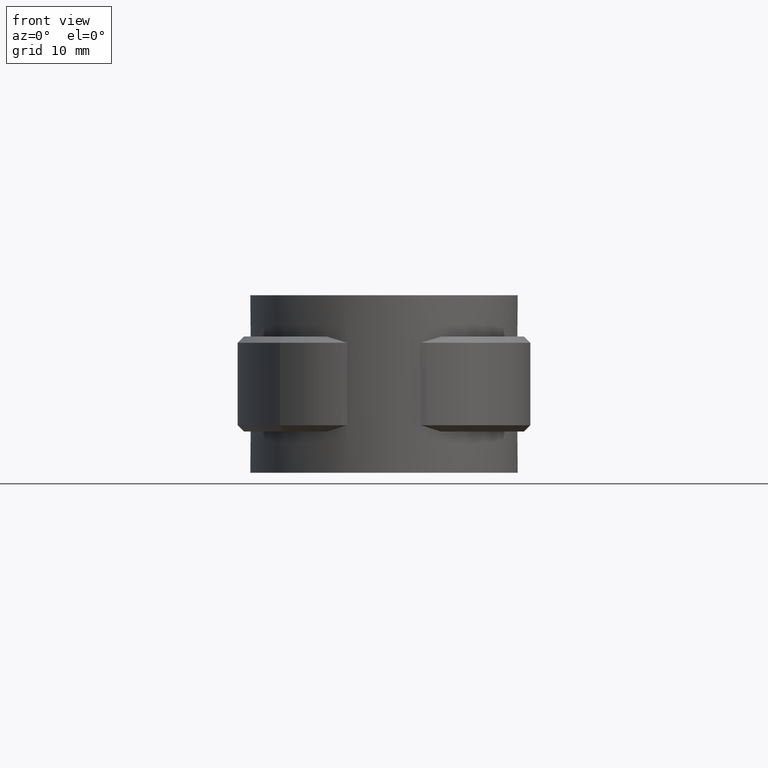
[diagram: clean part render]
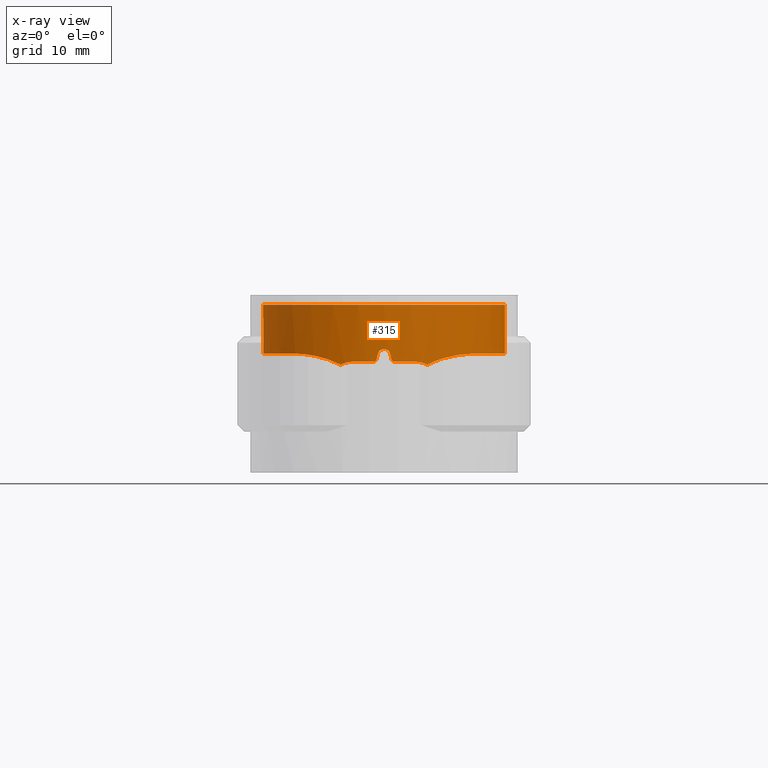
[diagram: x-ray — body ghosted, one internal face saturated and labeled with its STEP entity id]
A machine part, front view, then the same camera in x-ray: the body is ghosted and one INTERNAL B-rep face — a face not visible from any outside direction — is saturated and labeled: STEP entity #315.
In plain terms, the highlighted cylindrical surface (partial cylindrical patch) has radius 19.1 mm, axis along (0, 0, 1).
Its self-contained STEP definition (entity closure, byte-faithful):
#315 = ADVANCED_FACE( '', ( #528 ), #529, .T. );
#528 = FACE_OUTER_BOUND( '', #982, .T. );
#529 = CYLINDRICAL_SURFACE( '', #983, 19.1000000000000 );
#982 = EDGE_LOOP( '', ( #1820, #1821, #1822, #1823, #1824, #1825, #1826, #1827, #1828, #1829, #1830, #1831, #1832, #1833, #1834, #1835 ) );
#983 = AXIS2_PLACEMENT_3D( '', #1836, #1837, #1838 );
#1820 = ORIENTED_EDGE( '', *, *, #4294, .F. );
#1821 = ORIENTED_EDGE( '', *, *, #4295, .F. );
#1822 = ORIENTED_EDGE( '', *, *, #4296, .F. );
#1823 = ORIENTED_EDGE( '', *, *, #4297, .F. );
#1824 = ORIENTED_EDGE( '', *, *, #4298, .F. );
#1825 = ORIENTED_EDGE( '', *, *, #4299, .T. );
#1826 = ORIENTED_EDGE( '', *, *, #4300, .F. );
#1827 = ORIENTED_EDGE( '', *, *, #4301, .F. );
#1828 = ORIENTED_EDGE( '', *, *, #4302, .F. );
#1829 = ORIENTED_EDGE( '', *, *, #4303, .F. );
#1830 = ORIENTED_EDGE( '', *, *, #4304, .F. );
#1831 = ORIENTED_EDGE( '', *, *, #4305, .F. );
#1832 = ORIENTED_EDGE( '', *, *, #4306, .F. );
#1833 = ORIENTED_EDGE( '', *, *, #4307, .F. );
#1834 = ORIENTED_EDGE( '', *, *, #4308, .F. );
#1835 = ORIENTED_EDGE( '', *, *, #4309, .F. );
#1836 = CARTESIAN_POINT( '', ( 0.000000000000000, 0.000000000000000, 0.000000000000000 ) );
#1837 = DIRECTION( '', ( 0.000000000000000, 0.000000000000000, 1.00000000000000 ) );
#1838 = DIRECTION( '', ( 1.00000000000000, -6.12303176911189E-017, 0.000000000000000 ) );
#4294 = EDGE_CURVE( '', #4879, #4880, #4881, .T. );
#4295 = EDGE_CURVE( '', #4882, #4879, #4883, .T. );
#4296 = EDGE_CURVE( '', #4884, #4882, #4885, .T. );
#4297 = EDGE_CURVE( '', #4886, #4884, #4887, .T. );
#4298 = EDGE_CURVE( '', #4888, #4886, #4889, .F. );
#4299 = EDGE_CURVE( '', #4888, #4890, #4891, .T. );
#4300 = EDGE_CURVE( '', #4892, #4890, #4893, .T. );
#4301 = EDGE_CURVE( '', #4894, #4892, #4895, .T. );
#4302 = EDGE_CURVE( '', #4896, #4894, #4897, .T. );
#4303 = EDGE_CURVE( '', #4898, #4896, #4899, .T. );
#4304 = EDGE_CURVE( '', #4900, #4898, #4901, .T. );
#4305 = EDGE_CURVE( '', #4902, #4900, #4903, .T. );
#4306 = EDGE_CURVE( '', #4904, #4902, #4905, .T. );
#4307 = EDGE_CURVE( '', #4906, #4904, #4907, .T. );
#4308 = EDGE_CURVE( '', #4908, #4906, #4909, .T. );
#4309 = EDGE_CURVE( '', #4880, #4908, #4910, .T. );
#4879 = VERTEX_POINT( '', #5855 );
#4880 = VERTEX_POINT( '', #5856 );
#4881 = B_SPLINE_CURVE_WITH_KNOTS( '', 3, ( #5857, #5858, #5859, #5860, #5861, #5862, #5863, #5864 ), .UNSPECIFIED., .F., .F., ( 4, 2, 2, 4 ), ( 0.00930485489728145, 0.00980159790012563, 0.0102983409029698, 0.0112918269086582 ), .UNSPECIFIED. );
#4882 = VERTEX_POINT( '', #5865 );
#4883 = B_SPLINE_CURVE_WITH_KNOTS( '', 3, ( #5866, #5867, #5868, #5869, #5870, #5871, #5872, #5873, #5874, #5875, #5876, #5877 ), .UNSPECIFIED., .F., .F., ( 4, 2, 2, 2, 2, 4 ), ( 0.000000000000000, 0.00223758353469312, 0.00335637530203968, 0.00447516706938624, 0.00671275060407937, 0.00895033413877249 ), .UNSPECIFIED. );
#4884 = VERTEX_POINT( '', #5878 );
#4885 = B_SPLINE_CURVE_WITH_KNOTS( '', 3, ( #5879, #5880, #5881, #5882, #5883, #5884, #5885, #5886, #5887, #5888, #5889, #5890, #5891, #5892, #5893, #5894, #5895, #5896, #5897, #5898, #5899, #5900, #5901, #5902, #5903, #5904, #5905, #5906, #5907, #5908, #5909, #5910, #5911, #5912, #5913, #5914 ), .UNSPECIFIED., .F., .F., ( 4, 2, 2, 2, 2, 2, 2, 2, 2, 2, 2, 2, 2, 2, 2, 2, 2, 4 ), ( 0.000000000000000, 0.00475108088717999, 0.00593885110897499, 0.00712662133076999, 0.00950216177435998, 0.0118777022179500, 0.0130654724397450, 0.0142532426615400, 0.0190043235487200, 0.0201920937705150, 0.0213798639923100, 0.0237554044358999, 0.0249431746576949, 0.0261309448794899, 0.0285064853230799, 0.0308820257666699, 0.0332575662102599, 0.0380086470974399 ), .UNSPECIFIED. );
#4886 = VERTEX_POINT( '', #5915 );
#4887 = LINE( '', #5916, #5917 );
#4888 = VERTEX_POINT( '', #5918 );
#4889 = CIRCLE( '', #5919, 19.1000000000000 );
#4890 = VERTEX_POINT( '', #5920 );
#4891 = LINE( '', #5921, #5922 );
#4892 = VERTEX_POINT( '', #5923 );
#4893 = B_SPLINE_CURVE_WITH_KNOTS( '', 3, ( #5924, #5925, #5926, #5927, #5928, #5929, #5930, #5931, #5932, #5933, #5934, #5935, #5936, #5937, #5938, #5939, #5940, #5941, #5942, #5943, #5944, #5945, #5946, #5947, #5948, #5949, #5950, #5951, #5952, #5953, #5954, #5955, #5956, #5957, #5958, #5959 ), .UNSPECIFIED., .F., .F., ( 4, 2, 2, 2, 2, 2, 2, 2, 2, 2, 2, 2, 2, 2, 2, 2, 2, 4 ), ( 0.000000000000000, 0.00475107654079166, 0.00593884567598958, 0.00712661481118749, 0.00950215308158332, 0.0118776913519791, 0.0130654604871771, 0.0142532296223750, 0.0190043061631666, 0.0201920752983645, 0.0213798444335625, 0.0237553827039583, 0.0249431518391562, 0.0261309209743541, 0.0285064592447500, 0.0308819975151458, 0.0332575357855416, 0.0380086123263333 ), .UNSPECIFIED. );
#4894 = VERTEX_POINT( '', #5960 );
#4895 = B_SPLINE_CURVE_WITH_KNOTS( '', 3, ( #5961, #5962, #5963, #5964, #5965, #5966, #5967, #5968, #5969, #5970, #5971, #5972 ), .UNSPECIFIED., .F., .F., ( 4, 2, 2, 2, 2, 4 ), ( 0.00175160211347879, 0.00396907568867237, 0.00618654926386595, 0.00729528605146274, 0.00840402283905953, 0.0106214964142531 ), .UNSPECIFIED. );
#4896 = VERTEX_POINT( '', #5973 );
#4897 = B_SPLINE_CURVE_WITH_KNOTS( '', 3, ( #5974, #5975, #5976, #5977, #5978, #5979, #5980, #5981 ), .UNSPECIFIED., .F., .F., ( 4, 2, 2, 4 ), ( 3.46944695195361E-018, 0.000996698371651495, 0.00149504755747724, 0.00199339674330299 ), .UNSPECIFIED. );
#4898 = VERTEX_POINT( '', #5982 );
#4899 = CIRCLE( '', #5983, 19.1000000000000 );
#4900 = VERTEX_POINT( '', #5984 );
#4901 = B_SPLINE_CURVE_WITH_KNOTS( '', 3, ( #5985, #5986, #5987, #5988, #5989, #5990 ), .UNSPECIFIED., .F., .F., ( 4, 2, 4 ), ( 4.33680868994202E-019, 0.000336337775742347, 0.000672675551484694 ), .UNSPECIFIED. );
#4902 = VERTEX_POINT( '', #5991 );
#4903 = ELLIPSE( '', #5992, 87.0111998839009, 19.1000000000000 );
#4904 = VERTEX_POINT( '', #5993 );
#4905 = B_SPLINE_CURVE_WITH_KNOTS( '', 3, ( #5994, #5995, #5996, #5997, #5998, #5999, #6000, #6001, #6002, #6003 ), .UNSPECIFIED., .F., .F., ( 4, 2, 2, 2, 4 ), ( 0.000000000000000, 0.000671676872309651, 0.00134335374461930, 0.00201503061692895, 0.00268670748923860 ), .UNSPECIFIED. );
#4906 = VERTEX_POINT( '', #6004 );
#4907 = ELLIPSE( '', #6005, 87.0111554974909, 19.1000000000000 );
#4908 = VERTEX_POINT( '', #6006 );
#4909 = B_SPLINE_CURVE_WITH_KNOTS( '', 3, ( #6007, #6008, #6009, #6010, #6011, #6012 ), .UNSPECIFIED., .F., .F., ( 4, 2, 4 ), ( 8.20849171219253E-018, 0.000336327118468111, 0.000672654236936215 ), .UNSPECIFIED. );
#4910 = CIRCLE( '', #6013, 19.1000000000000 );
#5855 = CARTESIAN_POINT( '', ( 6.81905526878745, -17.8412579500788, -9.50984315978298 ) );
#5856 = CARTESIAN_POINT( '', ( 5.00000000000000, -18.4339360962329, -9.00000000000000 ) );
#5857 = CARTESIAN_POINT( '', ( 6.81905526878725, -17.8412579500781, -9.50984315978286 ) );
#5858 = CARTESIAN_POINT( '', ( 6.68368271215044, -17.8929983009080, -9.42748956578828 ) );
#5859 = CARTESIAN_POINT( '', ( 6.54119389277559, -17.9456552154205, -9.35360424239617 ) );
#5860 = CARTESIAN_POINT( '', ( 6.25071525526398, -18.0488868756841, -9.22726471757245 ) );
#5861 = CARTESIAN_POINT( '', ( 6.10205342860325, -18.0997396329836, -9.17427268426422 ) );
#5862 = CARTESIAN_POINT( '', ( 5.64566298384222, -18.2493565032353, -9.04557456820890 ) );
#5863 = CARTESIAN_POINT( '', ( 5.32448815223454, -18.3459222964290, -8.99999999999994 ) );
#5864 = CARTESIAN_POINT( '', ( 5.00000000000000, -18.4339360962330, -8.99999999999994 ) );
#5865 = CARTESIAN_POINT( '', ( 13.9497974310064, -13.0465800234959, -7.72134842581987 ) );
#5866 = CARTESIAN_POINT( '', ( 13.9487375409338, -13.0477094163743, -7.72135718793490 ) );
#5867 = CARTESIAN_POINT( '', ( 13.4375300633922, -13.5942190530959, -7.73205241137676 ) );
#5868 = CARTESIAN_POINT( '', ( 12.8974956627212, -14.1073780023349, -7.76999278455775 ) );
#5869 = CARTESIAN_POINT( '', ( 12.0451717407557, -14.8277515103729, -7.87211065263761 ) );
#5870 = CARTESIAN_POINT( '', ( 11.7537896944007, -15.0596842705441, -7.91397282004264 ) );
#5871 = CARTESIAN_POINT( '', ( 11.1644459084714, -15.5016389477206, -8.01349445764533 ) );
#5872 = CARTESIAN_POINT( '', ( 10.8656252400343, -15.7124170119223, -8.07122112833061 ) );
#5873 = CARTESIAN_POINT( '', ( 9.95800661632357, -16.3148872225008, -8.27142640207176 ) );
#5874 = CARTESIAN_POINT( '', ( 9.33787226663545, -16.6767989057806, -8.44006696159535 ) );
#5875 = CARTESIAN_POINT( '', ( 8.07731289124751, -17.3224852913412, -8.88128701216451 ) );
#5876 = CARTESIAN_POINT( '', ( 7.43085125747948, -17.6074251860550, -9.15670282519944 ) );
#5877 = CARTESIAN_POINT( '', ( 6.81905526878943, -17.8412579500772, -9.50984315978024 ) );
#5878 = CARTESIAN_POINT( '', ( 6.05609756097560, 18.1144605862815, -7.72310677885710 ) );
#5879 = CARTESIAN_POINT( '', ( 6.05609756097560, 18.1144605862815, -7.72310677885712 ) );
#5880 = CARTESIAN_POINT( '', ( 7.57969694207757, 17.6050848611890, -7.72562012981628 ) );
#5881 = CARTESIAN_POINT( '', ( 9.00781461851785, 16.9172655312135, -7.72756432809327 ) );
#5882 = CARTESIAN_POINT( '', ( 10.6774888721976, 15.8416861069945, -7.72556171551318 ) );
#5883 = CARTESIAN_POINT( '', ( 11.0055643952891, 15.6156198358674, -7.72500931238455 ) );
#5884 = CARTESIAN_POINT( '', ( 11.6497459801908, 15.1411178290845, -7.72378723809442 ) );
#5885 = CARTESIAN_POINT( '', ( 11.9661862444493, 14.8922751207296, -7.72311724225985 ) );
#5886 = CARTESIAN_POINT( '', ( 12.8841862084422, 14.1225221465428, -7.72141074492537 ) );
#5887 = CARTESIAN_POINT( '', ( 13.4590934723205, 13.5753396746223, -7.72102008189725 ) );
#5888 = CARTESIAN_POINT( '', ( 14.5366058856560, 12.4146741279481, -7.72209307797864 ) );
#5889 = CARTESIAN_POINT( '', ( 15.0392097496581, 11.8011898132735, -7.72312844814024 ) );
#5890 = CARTESIAN_POINT( '', ( 15.7377328261334, 10.8301774324812, -7.72407804340158 ) );
#5891 = CARTESIAN_POINT( '', ( 15.9619535607510, 10.4969838253384, -7.72430459482359 ) );
#5892 = CARTESIAN_POINT( '', ( 16.3882395453966, 9.81815845806580, -7.72448464818963 ) );
#5893 = CARTESIAN_POINT( '', ( 16.5896568409422, 9.47372222854536, -7.72443862695567 ) );
#5894 = CARTESIAN_POINT( '', ( 17.5394804084396, 7.72700837476189, -7.72358711091556 ) );
#5895 = CARTESIAN_POINT( '', ( 18.1187582240814, 6.25227254480824, -7.72049976296089 ) );
#5896 = CARTESIAN_POINT( '', ( 18.6117181531904, 4.30982503804202, -7.72188431563499 ) );
#5897 = CARTESIAN_POINT( '', ( 18.6981535280275, 3.91765520529962, -7.72231305974907 ) );
#5898 = CARTESIAN_POINT( '', ( 18.8453538199351, 3.13394433051340, -7.72317948483669 ) );
#5899 = CARTESIAN_POINT( '', ( 18.9064230279706, 2.74124292481065, -7.72361810307561 ) );
#5900 = CARTESIAN_POINT( '', ( 19.0526474488858, 1.56064189680553, -7.72466713815329 ) );
#5901 = CARTESIAN_POINT( '', ( 19.1009604714527, 0.770254973364756, -7.72496397996976 ) );
#5902 = CARTESIAN_POINT( '', ( 19.0994981536895, -0.420316774834448, -7.72453235057386 ) );
#5903 = CARTESIAN_POINT( '', ( 19.0866535791344, -0.818008289223871, -7.72425400711996 ) );
#5904 = CARTESIAN_POINT( '', ( 19.0357810945132, -1.61509149366079, -7.72352624738677 ) );
#5905 = CARTESIAN_POINT( '', ( 18.9975364675251, -2.01584394781422, -7.72307515961964 ) );
#5906 = CARTESIAN_POINT( '', ( 18.8459467068403, -3.20630119459723, -7.72177922285933 ) );
#5907 = CARTESIAN_POINT( '', ( 18.6961347971829, -3.98644916271011, -7.72102289809109 ) );
#5908 = CARTESIAN_POINT( '', ( 18.3019266073316, -5.52057204836203, -7.72184820040979 ) );
#5909 = CARTESIAN_POINT( '', ( 18.0575251328200, -6.27454562977232, -7.72306305140462 ) );
#5910 = CARTESIAN_POINT( '', ( 17.4725612059799, -7.75588432648445, -7.72476107474609 ) );
#5911 = CARTESIAN_POINT( '', ( 17.1295431999573, -8.48668405816067, -7.72522902838233 ) );
#5912 = CARTESIAN_POINT( '', ( 15.9798247934780, -10.5827891285198, -7.72453653077102 ) );
#5913 = CARTESIAN_POINT( '', ( 15.0500236748557, -11.8696085672741, -7.72043645344049 ) );
#5914 = CARTESIAN_POINT( '', ( 13.9529666093793, -13.0431868344184, -7.72131128926675 ) );
#5915 = CARTESIAN_POINT( '', ( 6.05609756097560, 18.1144605862815, 0.000000000000000 ) );
#5916 = CARTESIAN_POINT( '', ( 6.05609756097560, 18.1144605862815, 0.000000000000000 ) );
#5917 = VECTOR( '', #8753, 1000.00000000000 );
#5918 = CARTESIAN_POINT( '', ( -6.05609756097562, 18.1144605862815, 0.000000000000000 ) );
#5919 = AXIS2_PLACEMENT_3D( '', #8754, #8755, #8756 );
#5920 = CARTESIAN_POINT( '', ( -6.05609756097561, 18.1144605862815, -7.72310677885710 ) );
#5921 = CARTESIAN_POINT( '', ( -6.05609756097561, 18.1144605862815, 0.000000000000000 ) );
#5922 = VECTOR( '', #8757, 1000.00000000000 );
#5923 = CARTESIAN_POINT( '', ( -13.9497974301472, -13.0465800259749, -7.72134842667798 ) );
#5924 = CARTESIAN_POINT( '', ( -13.9529666093794, -13.0431868344184, -7.72131128926690 ) );
#5925 = CARTESIAN_POINT( '', ( -15.0500237828148, -11.8696084517849, -7.72043645335455 ) );
#5926 = CARTESIAN_POINT( '', ( -15.9781303747222, -10.5846086327108, -7.72452833013873 ) );
#5927 = CARTESIAN_POINT( '', ( -16.9339433597668, -8.84360498747048, -7.72511298919390 ) );
#5928 = CARTESIAN_POINT( '', ( -17.1147383029710, -8.48856659890242, -7.72507329389931 ) );
#5929 = CARTESIAN_POINT( '', ( -17.4551491159639, -7.76452184121149, -7.72469069820386 ) );
#5930 = CARTESIAN_POINT( '', ( -17.6148654171088, -7.39499751519392, -7.72434629642376 ) );
#5931 = CARTESIAN_POINT( '', ( -18.0554123260639, -6.28092138035001, -7.72307252744860 ) );
#5932 = CARTESIAN_POINT( '', ( -18.3002941409914, -5.52596405757660, -7.72185533536814 ) );
#5933 = CARTESIAN_POINT( '', ( -18.6949045640674, -3.99219084624516, -7.72102178329998 ) );
#5934 = CARTESIAN_POINT( '', ( -18.8446314327881, -3.21337446638488, -7.72177215684535 ) );
#5935 = CARTESIAN_POINT( '', ( -18.9963353447760, -2.02687463685485, -7.72306284032771 ) );
#5936 = CARTESIAN_POINT( '', ( -19.0347879010739, -1.62710831433997, -7.72351382801320 ) );
#5937 = CARTESIAN_POINT( '', ( -19.0862881371186, -0.827186225919105, -7.72424703716699 ) );
#5938 = CARTESIAN_POINT( '', ( -19.0993352459973, -0.428393244554325, -7.72452781443443 ) );
#5939 = CARTESIAN_POINT( '', ( -19.1025353225673, 1.55986731028730, -7.72525660513805 ) );
#5940 = CARTESIAN_POINT( '', ( -18.9094638628394, 3.13248650141633, -7.72273565996693 ) );
#5941 = CARTESIAN_POINT( '', ( -18.4177254912729, 5.07523705672603, -7.72133575810554 ) );
#5942 = CARTESIAN_POINT( '', ( -18.3069348882444, 5.46123642466597, -7.72123836358930 ) );
#5943 = CARTESIAN_POINT( '', ( -18.0630822162915, 6.22045248643622, -7.72154207712792 ) );
#5944 = CARTESIAN_POINT( '', ( -17.9297347740257, 6.59483552095197, -7.72188622711884 ) );
#5945 = CARTESIAN_POINT( '', ( -17.4959848333618, 7.70256406477955, -7.72303901687144 ) );
#5946 = CARTESIAN_POINT( '', ( -17.1620032405417, 8.42054782988430, -7.72392232629605 ) );
#5947 = CARTESIAN_POINT( '', ( -16.5936474503959, 9.46669739338388, -7.72443662379579 ) );
#5948 = CARTESIAN_POINT( '', ( -16.3929329080575, 9.81026156858541, -7.72448436445543 ) );
#5949 = CARTESIAN_POINT( '', ( -15.9685511547398, 10.4868896909712, -7.72430958813522 ) );
#5950 = CARTESIAN_POINT( '', ( -15.7440449640187, 10.8210474374511, -7.72408539519682 ) );
#5951 = CARTESIAN_POINT( '', ( -15.0437365910588, 11.7955952486206, -7.72313701580572 ) );
#5952 = CARTESIAN_POINT( '', ( -14.5404233322606, 12.4102104361819, -7.72209974525944 ) );
#5953 = CARTESIAN_POINT( '', ( -13.4630976801798, 13.5713755605541, -7.72102122423220 ) );
#5954 = CARTESIAN_POINT( '', ( -12.8890814142129, 14.1179217442160, -7.72140425858117 ) );
#5955 = CARTESIAN_POINT( '', ( -11.6691719729920, 15.1418149355602, -7.72366678687974 ) );
#5956 = CARTESIAN_POINT( '', ( -11.0194818660193, 15.6210140373318, -7.72514771389556 ) );
#5957 = CARTESIAN_POINT( '', ( -9.01017151120735, 16.9164727392802, -7.72756907713161 ) );
#5958 = CARTESIAN_POINT( '', ( -7.57969615966784, 17.6050851227673, -7.72562012852561 ) );
#5959 = CARTESIAN_POINT( '', ( -6.05609756097563, 18.1144605862815, -7.72310677885712 ) );
#5960 = CARTESIAN_POINT( '', ( -6.81905526877975, -17.8412579500772, -9.50984315977824 ) );
#5961 = CARTESIAN_POINT( '', ( -6.81905526877031, -17.8412579500846, -9.50984315979129 ) );
#5962 = CARTESIAN_POINT( '', ( -7.42763704447813, -17.6086536810510, -9.15855813035741 ) );
#5963 = CARTESIAN_POINT( '', ( -8.07310001833630, -17.3244444503956, -8.88298741813445 ) );
#5964 = CARTESIAN_POINT( '', ( -9.33361801480382, -16.6791754644717, -8.44133172379557 ) );
#5965 = CARTESIAN_POINT( '', ( -9.95588586230263, -16.3163826749193, -8.27183600323849 ) );
#5966 = CARTESIAN_POINT( '', ( -10.8690757200443, -15.7100825814617, -8.07048922596691 ) );
#5967 = CARTESIAN_POINT( '', ( -11.1710481874338, -15.4969193564744, -8.01225232479672 ) );
#5968 = CARTESIAN_POINT( '', ( -11.7626909924474, -15.0527714313090, -7.91260026409568 ) );
#5969 = CARTESIAN_POINT( '', ( -12.0519029772935, -14.8222324025928, -7.87122187063902 ) );
#5970 = CARTESIAN_POINT( '', ( -12.8995317491415, -14.1053123232048, -7.76991572725703 ) );
#5971 = CARTESIAN_POINT( '', ( -13.4379688122551, -13.5937500058064, -7.73204323209567 ) );
#5972 = CARTESIAN_POINT( '', ( -13.9487375409338, -13.0477094163743, -7.72135718793490 ) );
#5973 = CARTESIAN_POINT( '', ( -5.00000000000005, -18.4339360962329, -9.00000000000000 ) );
#5974 = CARTESIAN_POINT( '', ( -5.00000000000005, -18.4339360962329, -8.99999999999997 ) );
#5975 = CARTESIAN_POINT( '', ( -5.32540233347537, -18.3456743349421, -8.99999999999997 ) );
#5976 = CARTESIAN_POINT( '', ( -5.64090279093092, -18.2508677392978, -9.04449098640548 ) );
#5977 = CARTESIAN_POINT( '', ( -6.10049621370521, -18.1002744545514, -9.17370584339948 ) );
#5978 = CARTESIAN_POINT( '', ( -6.25233926244756, -18.0483288156474, -9.22785801069390 ) );
#5979 = CARTESIAN_POINT( '', ( -6.54378610163253, -17.9447146186990, -9.35484637913281 ) );
#5980 = CARTESIAN_POINT( '', ( -6.68405498629081, -17.8928560150923, -9.42771603793461 ) );
#5981 = CARTESIAN_POINT( '', ( -6.81905526878070, -17.8412579500806, -9.50984315977882 ) );
#5982 = CARTESIAN_POINT( '', ( -1.65000000000003, -19.0285969004548, -9.00000000000000 ) );
#5983 = AXIS2_PLACEMENT_3D( '', #8758, #8759, #8760 );
#5984 = CARTESIAN_POINT( '', ( -1.16219512100914, -19.0646086374912, -8.60975609337373 ) );
#5985 = CARTESIAN_POINT( '', ( -1.16219512100915, -19.0646086374912, -8.60975609337372 ) );
#5986 = CARTESIAN_POINT( '', ( -1.18715765708161, -19.0630868995849, -8.72070070258703 ) );
#5987 = CARTESIAN_POINT( '', ( -1.24923773707083, -19.0593103406564, -8.81980675290700 ) );
#5988 = CARTESIAN_POINT( '', ( -1.42662763242333, -19.0468537870059, -8.96151006055798 ) );
#5989 = CARTESIAN_POINT( '', ( -1.53670637462590, -19.0384207714867, -8.99999999999994 ) );
#5990 = CARTESIAN_POINT( '', ( -1.65000000000003, -19.0285969004548, -8.99999999999994 ) );
#5991 = CARTESIAN_POINT( '', ( -0.975610000000025, -19.0750671067732, -7.78048800000004 ) );
#5992 = AXIS2_PLACEMENT_3D( '', #8761, #8762, #8763 );
#5993 = CARTESIAN_POINT( '', ( 0.975609757981813, -19.0750671191514, -7.78048781325256 ) );
#5994 = CARTESIAN_POINT( '', ( 0.975609757981815, -19.0750671191514, -7.78048781325255 ) );
#5995 = CARTESIAN_POINT( '', ( 0.925757385009208, -19.0776168591459, -7.55892180128992 ) );
#5996 = CARTESIAN_POINT( '', ( 0.801997831383430, -19.0839791880777, -7.36098161968766 ) );
#5997 = CARTESIAN_POINT( '', ( 0.447436048285922, -19.0955822942172, -7.07731587360205 ) );
#5998 = CARTESIAN_POINT( '', ( 0.227117419891250, -19.1000000160627, -6.99999971248022 ) );
#5999 = CARTESIAN_POINT( '', ( -0.227120121551986, -19.0999999839372, -7.00000028065425 ) );
#6000 = CARTESIAN_POINT( '', ( -0.447488444089590, -19.0955808086857, -7.07734852942236 ) );
#6001 = CARTESIAN_POINT( '', ( -0.801994740210287, -19.0839790600733, -7.36098809107857 ) );
#6002 = CARTESIAN_POINT( '', ( -0.925757662153678, -19.0776168456052, -7.55892194611682 ) );
#6003 = CARTESIAN_POINT( '', ( -0.975610000000025, -19.0750671067732, -7.78048800000004 ) );
#6004 = CARTESIAN_POINT( '', ( 1.16219499999999, -19.0646086448680, -8.60975599999999 ) );
#6005 = AXIS2_PLACEMENT_3D( '', #8764, #8765, #8766 );
#6006 = CARTESIAN_POINT( '', ( 1.64999999999995, -19.0285969004549, -9.00000000000000 ) );
#6007 = CARTESIAN_POINT( '', ( 1.64999999999995, -19.0285969004549, -8.99999999999995 ) );
#6008 = CARTESIAN_POINT( '', ( 1.53670633490443, -19.0384207749310, -9.00000000048620 ) );
#6009 = CARTESIAN_POINT( '', ( 1.42662640035972, -19.0468538504426, -8.96150724820204 ) );
#6010 = CARTESIAN_POINT( '', ( 1.24924883699643, -19.0593095842841, -8.81981751974237 ) );
#6011 = CARTESIAN_POINT( '', ( 1.18715754853016, -19.0630869063613, -8.72070066235751 ) );
#6012 = CARTESIAN_POINT( '', ( 1.16219499999999, -19.0646086448680, -8.60975599999999 ) );
#6013 = AXIS2_PLACEMENT_3D( '', #8767, #8768, #8769 );
#8753 = DIRECTION( '', ( 0.000000000000000, 0.000000000000000, -1.00000000000000 ) );
#8754 = CARTESIAN_POINT( '', ( 0.000000000000000, 0.000000000000000, 0.000000000000000 ) );
#8755 = DIRECTION( '', ( 0.000000000000000, 0.000000000000000, -1.00000000000000 ) );
#8756 = DIRECTION( '', ( -1.00000000000000, 0.000000000000000, 0.000000000000000 ) );
#8757 = DIRECTION( '', ( 0.000000000000000, 0.000000000000000, -1.00000000000000 ) );
#8758 = CARTESIAN_POINT( '', ( 0.000000000000000, 0.000000000000000, -9.00000000000000 ) );
#8759 = DIRECTION( '', ( 6.12303176911189E-017, 0.000000000000000, -1.00000000000000 ) );
#8760 = DIRECTION( '', ( -1.00000000000000, 0.000000000000000, -6.12303176911189E-017 ) );
#8761 = CARTESIAN_POINT( '', ( 0.000000000000000, 0.000000000000000, -3.44443890776446 ) );
#8762 = DIRECTION( '', ( 0.975609806487711, 0.000000000000000, -0.219511971165610 ) );
#8763 = DIRECTION( '', ( -0.219511971165610, 0.000000000000000, -0.975609806487711 ) );
#8764 = CARTESIAN_POINT( '', ( 0.000000000000000, 0.000000000000000, -3.44444212055029 ) );
#8765 = DIRECTION( '', ( -0.975609781292647, 0.000000000000000, -0.219512083143762 ) );
#8766 = DIRECTION( '', ( 0.219512083143762, 0.000000000000000, -0.975609781292647 ) );
#8767 = CARTESIAN_POINT( '', ( 0.000000000000000, 0.000000000000000, -9.00000000000000 ) );
#8768 = DIRECTION( '', ( 6.12303176911189E-017, 0.000000000000000, -1.00000000000000 ) );
#8769 = DIRECTION( '', ( -1.00000000000000, 0.000000000000000, -6.12303176911189E-017 ) );